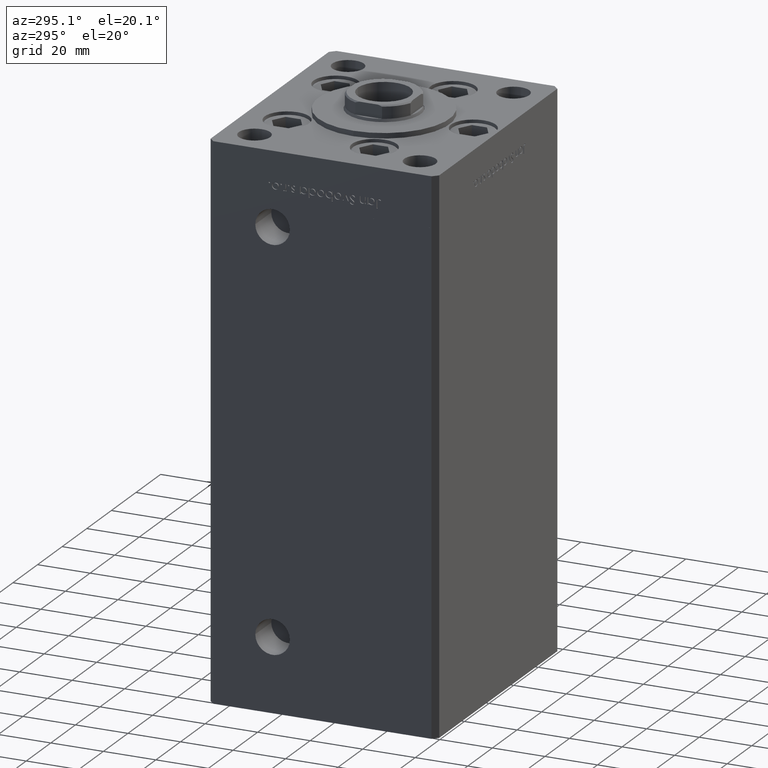
[diagram: clean part render]
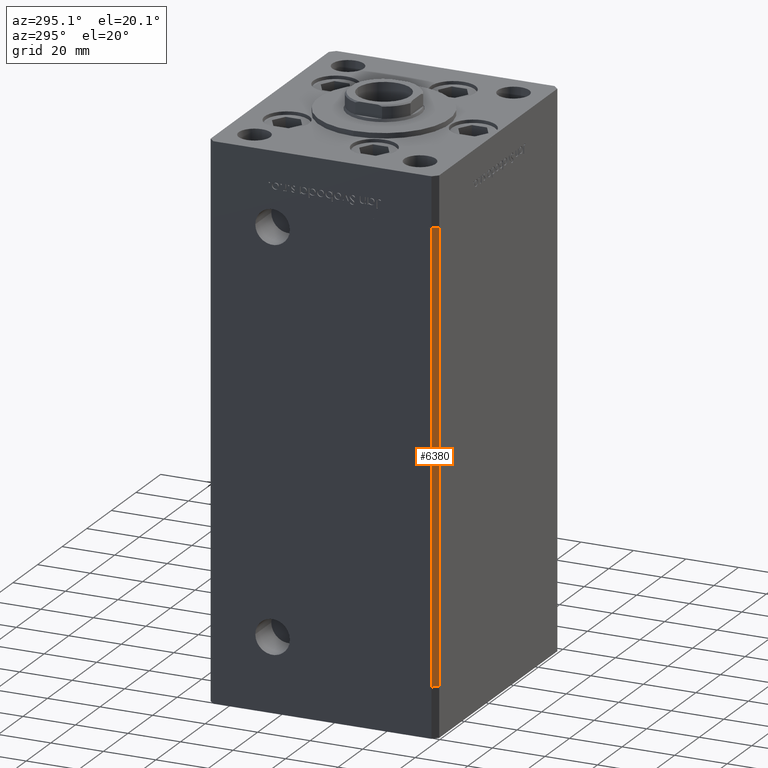
[diagram: same view with one face highlighted and labeled with its STEP entity id]
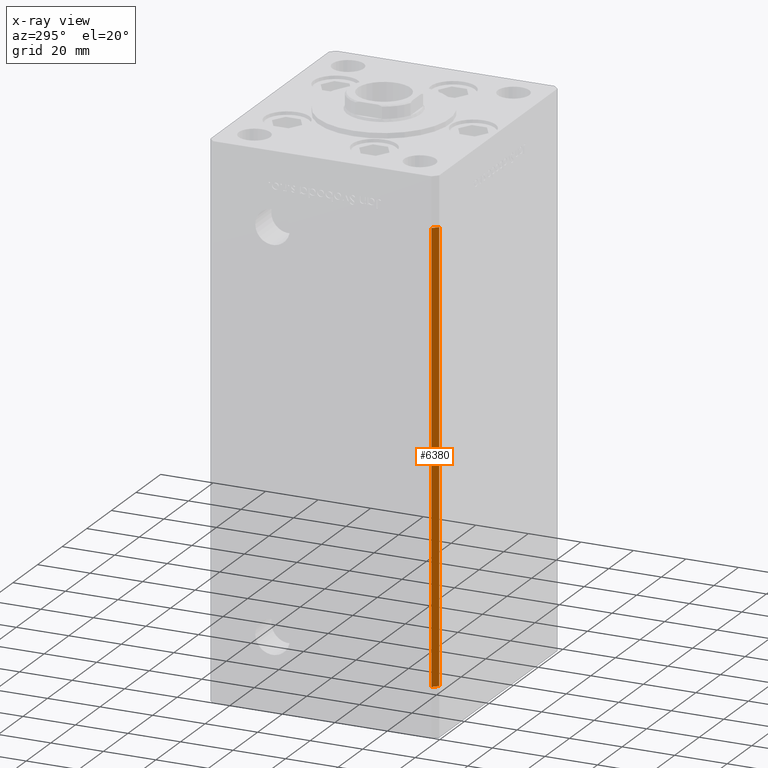
[diagram: x-ray of the same camera — body ghosted, the highlighted face saturated]
A machine part, auxiliary view. The second image highlights one B-rep face of the part: STEP entity #6380.
The next image is the same camera in x-ray: the body ghosted, the highlighted face saturated — about 0% of this face is hidden behind the body in this view.
In plain terms, the highlighted planar face has unit normal (0.7071, 0.7071, 0).
Its self-contained STEP definition (entity closure, byte-faithful):
#966 = VECTOR ( 'NONE', #15358, 1000.000000000000000 ) ;
#987 = VECTOR ( 'NONE', #49240, 1000.000000000000114 ) ;
#2160 = ORIENTED_EDGE ( 'NONE', *, *, #45140, .T. ) ;
#3351 = CARTESIAN_POINT ( 'NONE',  ( -47.99999999999998579, -43.50000000000000000, 168.5000000000000000 ) ) ;
#4420 = LINE ( 'NONE', #40880, #10568 ) ;
#6380 = ADVANCED_FACE ( 'NONE', ( #18664 ), #26009, .F. ) ;
#6838 = DIRECTION ( 'NONE',  ( 0.7071067811865475727, 0.7071067811865475727, -0.000000000000000000 ) ) ;
#10568 = VECTOR ( 'NONE', #20958, 1000.000000000000114 ) ;
#12282 = ORIENTED_EDGE ( 'NONE', *, *, #18535, .F. ) ;
#15358 = DIRECTION ( 'NONE',  ( -0.000000000000000000, -0.000000000000000000, -1.000000000000000000 ) ) ;
#15704 = ORIENTED_EDGE ( 'NONE', *, *, #21381, .F. ) ;
#18535 = EDGE_CURVE ( 'NONE', #25978, #47379, #29547, .T. ) ;
#18664 = FACE_OUTER_BOUND ( 'NONE', #32853, .T. ) ;
#20958 = DIRECTION ( 'NONE',  ( 0.7071067811865474617, -0.7071067811865474617, 0.000000000000000000 ) ) ;
#20966 = VERTEX_POINT ( 'NONE', #41923 ) ;
#21381 = EDGE_CURVE ( 'NONE', #47379, #20966, #51828, .T. ) ;
#22339 = DIRECTION ( 'NONE',  ( -0.7071067811865474617, 0.7071067811865474617, 0.000000000000000000 ) ) ;
#25093 = CARTESIAN_POINT ( 'NONE',  ( -49.99999999999998579, -41.49999999999999289, 168.5000000000000000 ) ) ;
#25978 = VERTEX_POINT ( 'NONE', #47634 ) ;
#26009 = PLANE ( 'NONE',  #33435 ) ;
#29032 = CARTESIAN_POINT ( 'NONE',  ( -49.99999999999998579, -41.49999999999999289, 168.5000000000000000 ) ) ;
#29547 = LINE ( 'NONE', #25093, #987 ) ;
#31730 = CARTESIAN_POINT ( 'NONE',  ( -49.99999999999998579, -41.49999999999999289, 0.000000000000000000 ) ) ;
#32853 = EDGE_LOOP ( 'NONE', ( #2160, #15704, #12282, #38896 ) ) ;
#33435 = AXIS2_PLACEMENT_3D ( 'NONE', #38857, #6838, #22339 ) ;
#36985 = EDGE_CURVE ( 'NONE', #25978, #42812, #50002, .T. ) ;
#38857 = CARTESIAN_POINT ( 'NONE',  ( -49.99999999999998579, -41.49999999999999289, 168.5000000000000000 ) ) ;
#38896 = ORIENTED_EDGE ( 'NONE', *, *, #36985, .T. ) ;
#40618 = VECTOR ( 'NONE', #45025, 1000.000000000000000 ) ;
#40880 = CARTESIAN_POINT ( 'NONE',  ( -49.99999999999998579, -41.49999999999999289, 0.000000000000000000 ) ) ;
#41923 = CARTESIAN_POINT ( 'NONE',  ( -47.99999999999998579, -43.50000000000000000, 0.000000000000000000 ) ) ;
#42812 = VERTEX_POINT ( 'NONE', #31730 ) ;
#43677 = CARTESIAN_POINT ( 'NONE',  ( -47.99999999999998579, -43.50000000000000000, 168.5000000000000000 ) ) ;
#45025 = DIRECTION ( 'NONE',  ( -0.000000000000000000, -0.000000000000000000, -1.000000000000000000 ) ) ;
#45140 = EDGE_CURVE ( 'NONE', #42812, #20966, #4420, .T. ) ;
#47379 = VERTEX_POINT ( 'NONE', #3351 ) ;
#47634 = CARTESIAN_POINT ( 'NONE',  ( -49.99999999999998579, -41.49999999999999289, 168.5000000000000000 ) ) ;
#49240 = DIRECTION ( 'NONE',  ( 0.7071067811865474617, -0.7071067811865474617, 0.000000000000000000 ) ) ;
#50002 = LINE ( 'NONE', #29032, #40618 ) ;
#51828 = LINE ( 'NONE', #43677, #966 ) ;